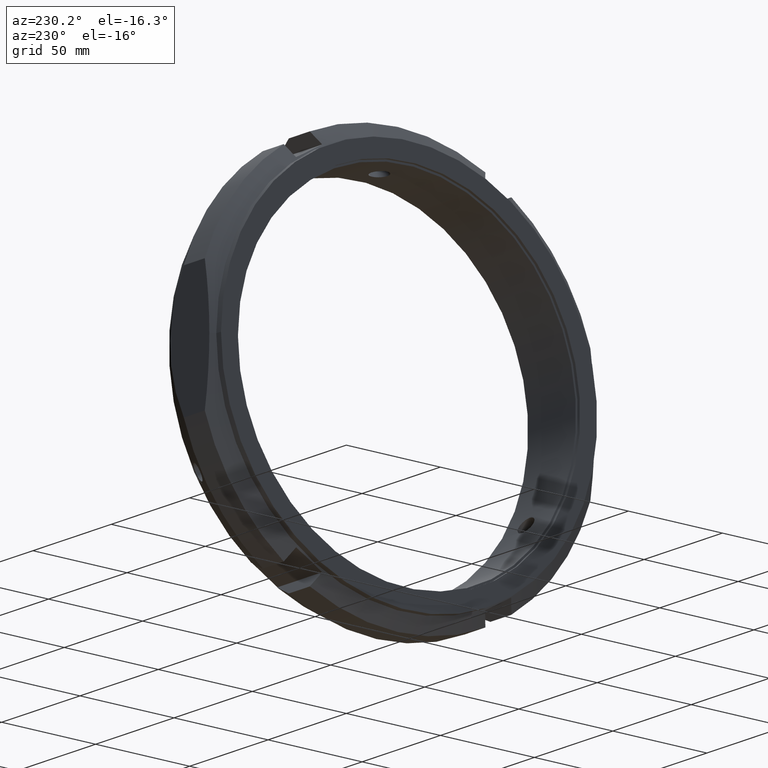
[diagram: clean part render]
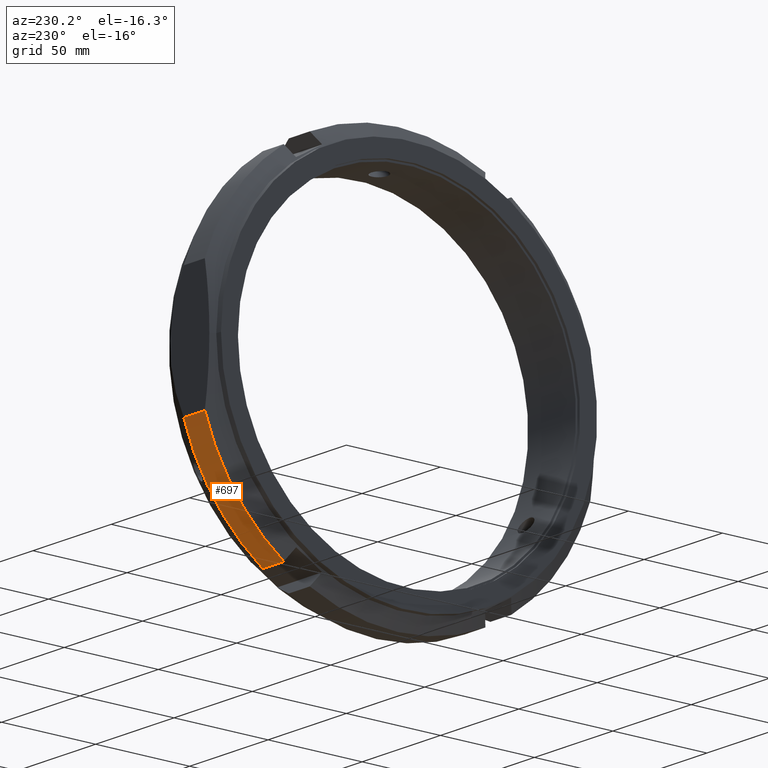
[diagram: same view with one face highlighted and labeled with its STEP entity id]
A machine part, auxiliary view. The second image highlights one B-rep face of the part: STEP entity #697.
In plain terms, the highlighted cylindrical surface (partial cylindrical patch) has radius 107.5 mm, axis along (1, 0, 0).
Its self-contained STEP definition (entity closure, byte-faithful):
#73=CARTESIAN_POINT('',(7.330127018922157,60.529159378463611,-88.839579382933522));
#74=VERTEX_POINT('',#73);
#90=CARTESIAN_POINT('',(20.741669750802288,60.529159378463611,-88.839579382933522));
#91=VERTEX_POINT('',#90);
#92=CARTESIAN_POINT('',(20.741669750802291,60.529159378463611,-88.839579382933522));
#93=DIRECTION('',(-1.0,0.0,0.0));
#94=VECTOR('',#93,13.411542731880134);
#95=LINE('',#92,#94);
#96=EDGE_CURVE('',#91,#74,#95,.T.);
#485=CARTESIAN_POINT('',(20.741669750802288,102.50000000000001,-32.403703492039234));
#486=VERTEX_POINT('',#485);
#487=CARTESIAN_POINT('',(20.741669750802288,0.0,0.0));
#488=DIRECTION('',(1.0,0.0,0.0));
#489=DIRECTION('',(0.0,1.0,0.0));
#490=AXIS2_PLACEMENT_3D('',#487,#488,#489);
#491=CIRCLE('',#490,107.5);
#492=EDGE_CURVE('',#91,#486,#491,.T.);
#673=CARTESIAN_POINT('',(14.035898384862225,0.0,0.0));
#674=DIRECTION('',(1.0,0.0,0.0));
#675=DIRECTION('',(0.0,1.0,0.0));
#676=AXIS2_PLACEMENT_3D('',#673,#674,#675);
#677=CYLINDRICAL_SURFACE('',#676,107.5);
#678=ORIENTED_EDGE('',*,*,#96,.T.);
#679=CARTESIAN_POINT('',(7.330127018922159,102.50000000000001,-32.403703492039234));
#680=VERTEX_POINT('',#679);
#681=CARTESIAN_POINT('',(7.330127018922159,0.0,0.0));
#682=DIRECTION('',(1.0,0.0,0.0));
#683=DIRECTION('',(0.0,1.0,0.0));
#684=AXIS2_PLACEMENT_3D('',#681,#682,#683);
#685=CIRCLE('',#684,107.5);
#686=EDGE_CURVE('',#74,#680,#685,.T.);
#687=ORIENTED_EDGE('',*,*,#686,.T.);
#688=CARTESIAN_POINT('',(7.33012701892216,102.50000000000001,-32.403703492039234));
#689=DIRECTION('',(1.0,0.0,0.0));
#690=VECTOR('',#689,13.411542731880132);
#691=LINE('',#688,#690);
#692=EDGE_CURVE('',#680,#486,#691,.T.);
#693=ORIENTED_EDGE('',*,*,#692,.T.);
#694=ORIENTED_EDGE('',*,*,#492,.F.);
#695=EDGE_LOOP('',(#678,#687,#693,#694));
#696=FACE_OUTER_BOUND('',#695,.T.);
#697=ADVANCED_FACE('',(#696),#677,.T.);